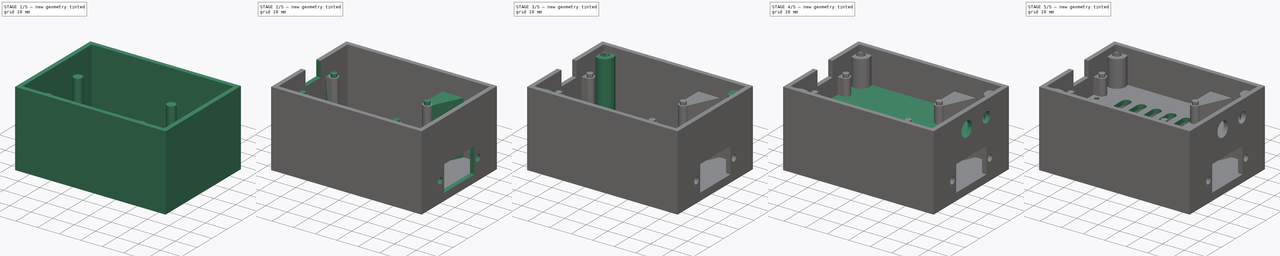
[diagram: build sequence overview — one tinted view per stage of 5, left to right]
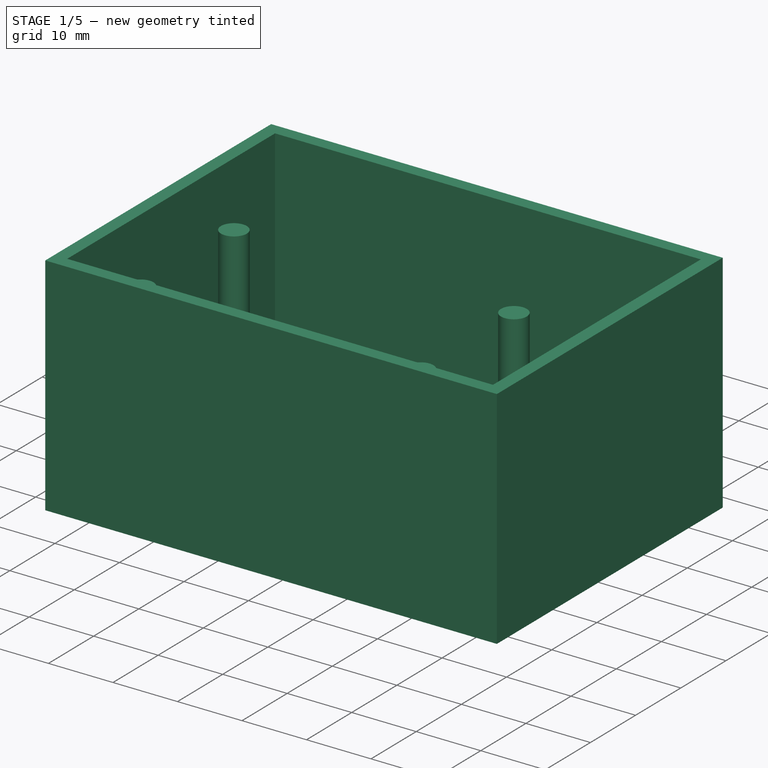
[diagram: stage 1 of 5 — iso view after this stage's code; geometry added in this stage tinted green]
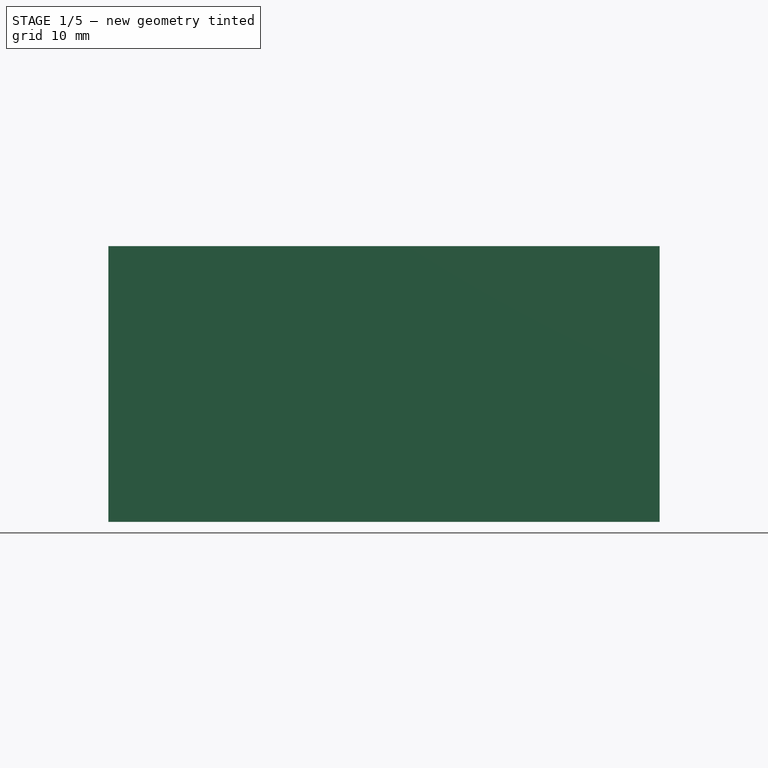
[diagram: stage 1 of 5 — front view after this stage's code; geometry added in this stage tinted green]
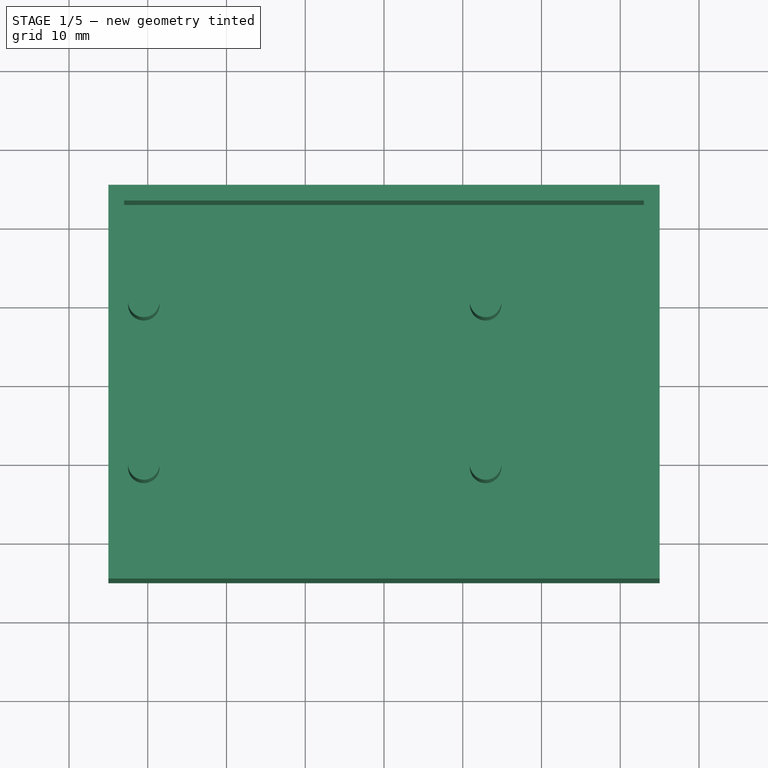
[diagram: stage 1 of 5 — top view after this stage's code; geometry added in this stage tinted green]
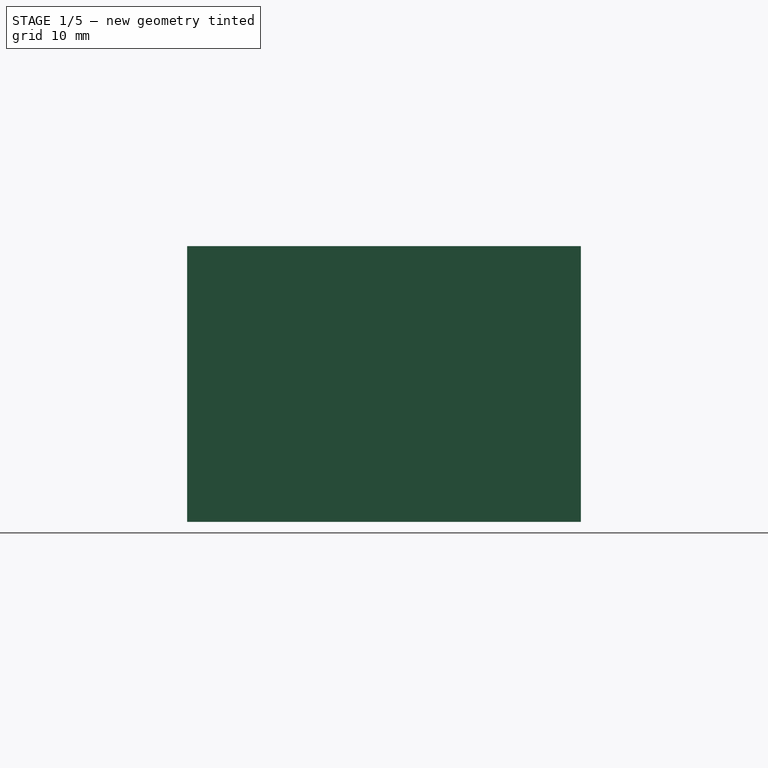
[diagram: stage 1 of 5 — right view after this stage's code; geometry added in this stage tinted green]
FCSTD DOCUMENT  (FreeCAD 0.18R)
Label: ESP_Sensor
License: All rights reserved
LicenseURL: http://en.wikipedia.org/wiki/All_rights_reserved
objects: Sketcher::SketchObject×17, PartDesign::Pocket×9, PartDesign::Pad×8, PartDesign::Body×2, Spreadsheet::Sheet×1
note: 53 computed .brp shape members not serialized (recipe doc carries the construction recipe); baked Part::Feature solids carry a one-line shape summary decoded from their .brp

FEATURE [Sketcher::SketchObject] Sketch
  MapMode = 5
  Support = -> [XY_Plane]
  expr: Constraints[9] = Parameter.gehaeuse_breite
  expr: Constraints[8] = Parameter.gehaeuse_laenge
  sketch-geometry (4):
    g0: LineSegment StartX=-35 StartY=25 StartZ=0 EndX=35 EndY=25 EndZ=0
    g1: LineSegment StartX=35 StartY=25 StartZ=0 EndX=35 EndY=-25 EndZ=0
    g2: LineSegment StartX=35 StartY=-25 StartZ=0 EndX=-35 EndY=-25 EndZ=0
    g3: LineSegment StartX=-35 StartY=-25 StartZ=0 EndX=-35 EndY=25 EndZ=0
  constraints (10):
    c: Coincident(g0,g1)
    c: Coincident(g1,g2)
    c: Coincident(g2,g3)
    c: Coincident(g3,g0)
    c: Horizontal(g2)
    c: Vertical(g1)
    c: Symmetric(g0,g0,g-2)
    c: Symmetric(g0,g2,g-1)
    c: DistanceX(g0,g0) = 70
    c: DistanceY(g2,g0) = 50
FEATURE [PartDesign::Pad] Pad  label="Boden"
  Length = 35
  Length2 = 100
  Midplane = true
  Profile = -> Sketch
  Type = 0
  expr: Length = Parameter.gehaeuse_hoehe
FEATURE [Spreadsheet::Sheet] Spreadsheet  label="Parameter"
  cells = A1=Länge; B1(gehaeuse_laenge)=70; C1=60; A2=Breite; B2(gehaeuse_breite)=50; C2=36; A3=Höhe; B3(gehaeuse_hoehe)=35; A4=Wandstärke; B4(gehaeuse_wand)=2
FEATURE [Sketcher::SketchObject] Sketch001
  MapMode = 5
  Placement = pos=(0,0,17.5) rot=(0,0,1;0rad)
  Support = -> [Pad]
  expr: Constraints[9] = Parameter.gehaeuse_breite - 4
  expr: Constraints[8] = Parameter.gehaeuse_laenge - 4
  sketch-geometry (4):
    g0: LineSegment StartX=-33 StartY=23 StartZ=0 EndX=33 EndY=23 EndZ=0
    g1: LineSegment StartX=33 StartY=23 StartZ=0 EndX=33 EndY=-23 EndZ=0
    g2: LineSegment StartX=33 StartY=-23 StartZ=0 EndX=-33 EndY=-23 EndZ=0
    g3: LineSegment StartX=-33 StartY=-23 StartZ=0 EndX=-33 EndY=23 EndZ=0
  constraints (10):
    c: Coincident(g0,g1)
    c: Coincident(g1,g2)
    c: Coincident(g2,g3)
    c: Coincident(g3,g0)
    c: Horizontal(g2)
    c: Vertical(g1)
    c: Symmetric(g0,g0,g-2)
    c: Symmetric(g0,g2,g-1)
    c: DistanceX(g0,g0) = 66
    c: DistanceY(g2,g0) = 46
FEATURE [Sketcher::SketchObject] Sketch002
  MapMode = 5
  Placement = pos=(0,0,-15.5) rot=(0,0,1;0rad)
  expr: Constraints[11] = Parameter.gehaeuse_laenge / 2 - 4.5
  expr: Constraints[10] = Parameter.gehaeuse_laenge / 2 - 4.5
  sketch-geometry (4):
    g0: Circle CenterX=-30.5 CenterY=10.325 CenterZ=0 NormalX=0 NormalY=0 NormalZ=1 AngleXU=0 Radius=2
    g1: Circle CenterX=12.9 CenterY=10.325 CenterZ=0 NormalX=0 NormalY=0 NormalZ=1 AngleXU=0 Radius=2
    g2: Circle CenterX=-30.5 CenterY=-10.325 CenterZ=0 NormalX=0 NormalY=0 NormalZ=1 AngleXU=0 Radius=2
    g3: Circle CenterX=12.9 CenterY=-10.325 CenterZ=0 NormalX=0 NormalY=0 NormalZ=1 AngleXU=0 Radius=2
  constraints (12):
    c: DistanceX(g0,g1) = 43.4
    c: Radius(g0) = 2
    c: Equal(g0,g1)
    c: DistanceY(g-1,g0) = 10.325
    c: DistanceY(g-1,g1) = 10.325
    c: DistanceX(g2,g3) = 43.4
    c: DistanceY(g2,g-1) = 10.325
    c: DistanceY(g3,g-1) = 10.325
    c: Equal(g0,g2)
    c: Equal(g0,g3)
    c: DistanceX(g0,g-1) = 30.5
    c: DistanceX(g2,g-1) = 30.5
FEATURE [PartDesign::Pocket] Pocket
  BaseFeature = -> Pad
  Length = 33
  Length2 = 100
  Profile = -> Sketch001
  Type = 0
  expr: Length = Parameter.gehaeuse_hoehe - 2
FEATURE [PartDesign::Pad] Pad001  label="Abstandhalter ESP vom Boden"
  BaseFeature = -> Pocket
  Length = 25
  Length2 = 100
  Profile = -> Sketch002
  Type = 0
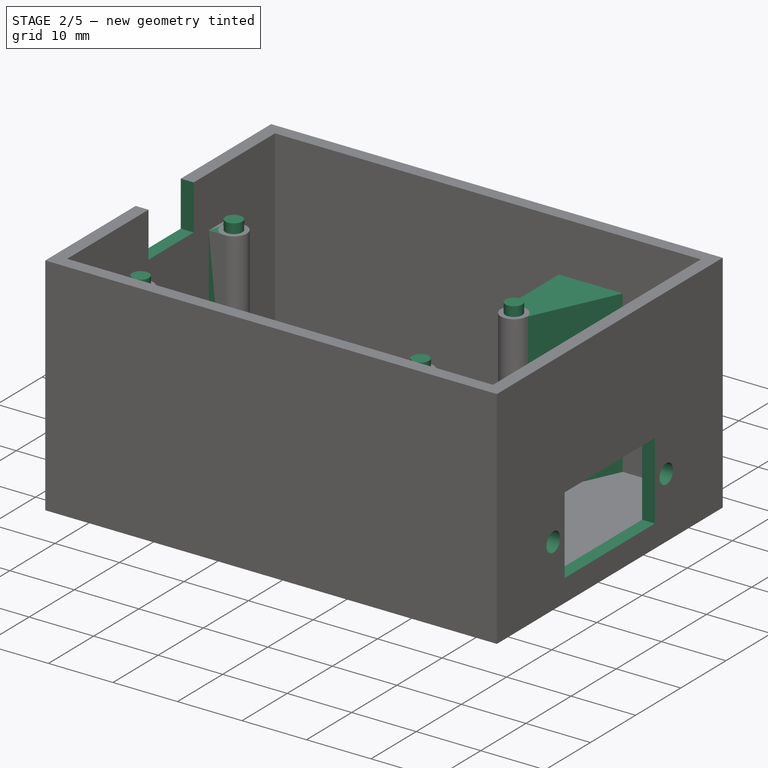
[diagram: stage 2 of 5 — iso view after this stage's code; geometry added in this stage tinted green]
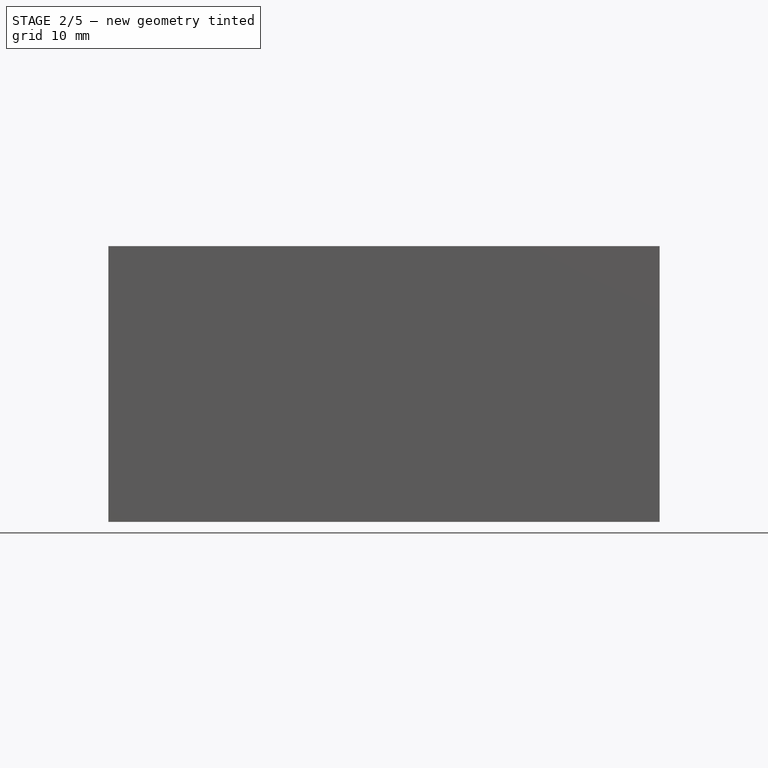
[diagram: stage 2 of 5 — front view after this stage's code; geometry added in this stage tinted green]
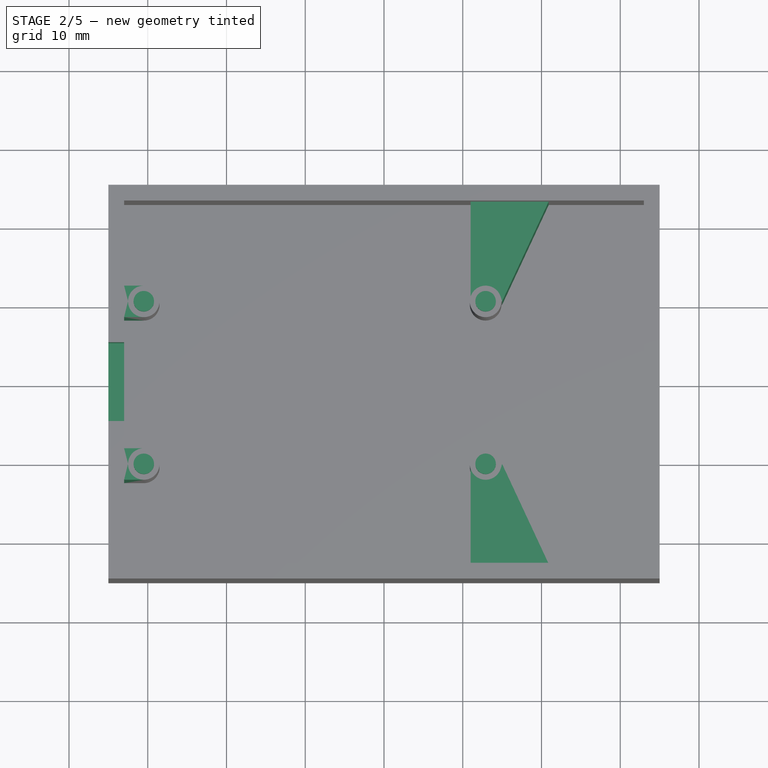
[diagram: stage 2 of 5 — top view after this stage's code; geometry added in this stage tinted green]
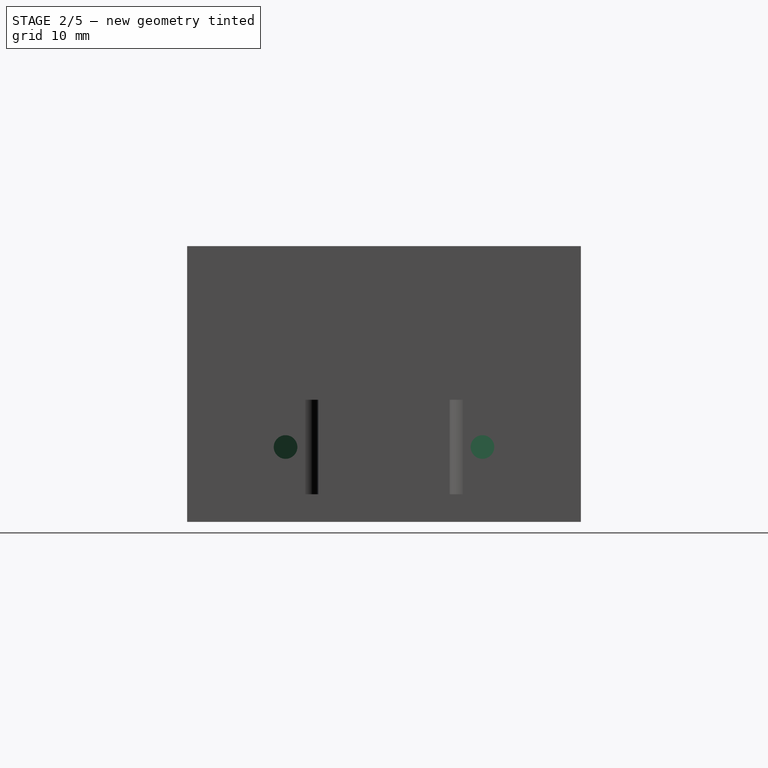
[diagram: stage 2 of 5 — right view after this stage's code; geometry added in this stage tinted green]
FEATURE [Sketcher::SketchObject] Sketch003
  MapMode = 5
  Placement = pos=(0,0,9.5) rot=(0,0,1;0rad)
  Support = -> [Pad001]
  expr: Constraints[5] = Parameter.gehaeuse_laenge / 2 - 4.5
  expr: Constraints[4] = Parameter.gehaeuse_laenge / 2 - 4.5
  sketch-geometry (6):
    g0: LineSegment [constr] StartX=-30.5 StartY=10.325 StartZ=0 EndX=12.9 EndY=10.325 EndZ=0
    g1: LineSegment [constr] StartX=-30.5 StartY=-10.325 StartZ=0 EndX=12.9 EndY=-10.325 EndZ=0
    g2: Circle CenterX=-30.5 CenterY=10.325 CenterZ=0 NormalX=0 NormalY=0 NormalZ=1 AngleXU=0 Radius=1.3
    g3: Circle CenterX=12.9 CenterY=10.325 CenterZ=0 NormalX=0 NormalY=0 NormalZ=1 AngleXU=0 Radius=1.3
    g4: Circle CenterX=-30.5 CenterY=-10.325 CenterZ=0 NormalX=0 NormalY=0 NormalZ=1 AngleXU=0 Radius=1.3
    g5: Circle CenterX=12.9 CenterY=-10.325 CenterZ=0 NormalX=0 NormalY=0 NormalZ=1 AngleXU=0 Radius=1.3
  constraints (16):
    c: Horizontal(g0)
    c: Horizontal(g1)
    c: DistanceX(g1,g1) = 43.4
    c: Equal(g1,g0)
    c: DistanceX(g0,g-1) = 30.5
    c: DistanceX(g1,g-1) = 30.5
    c: DistanceY(g-1,g0) = 10.325
    c: DistanceY(g1,g-1) = 10.325
    c: Coincident(g2,g0)
    c: Coincident(g3,g0)
    c: Coincident(g4,g1)
    c: Coincident(g5,g1)
    c: Equal(g2,g3)
    c: Equal(g2,g4)
    c: Equal(g2,g5)
    c: Radius(g2) = 1.3
FEATURE [PartDesign::Pad] Pad002  label="ESP Befestigung"
  BaseFeature = -> Pad001
  Length = 1.5
  Length2 = 100
  Profile = -> Sketch003
  Type = 0
FEATURE [Sketcher::SketchObject] Sketch004
  MapMode = 5
  Placement = pos=(-35,0,0) rot=(0.57735,-0.57735,-0.57735;2.0944rad)
  Support = -> [Pad002]
  sketch-geometry (4):
    g0: LineSegment StartX=-5 StartY=17.5 StartZ=0 EndX=5 EndY=17.5 EndZ=0
    g1: LineSegment StartX=5 StartY=17.5 StartZ=0 EndX=5 EndY=10.5 EndZ=0
    g2: LineSegment StartX=5 StartY=10.5 StartZ=0 EndX=-5 EndY=10.5 EndZ=0
    g3: LineSegment StartX=-5 StartY=10.5 StartZ=0 EndX=-5 EndY=17.5 EndZ=0
  constraints (11):
    c: Coincident(g0,g1)
    c: Coincident(g1,g2)
    c: Coincident(g2,g3)
    c: Coincident(g3,g0)
    c: Horizontal(g2)
    c: Vertical(g1)
    c: Vertical(g3)
    c: DistanceY(g-1,g2) = 10.5
    c: DistanceY(g1,g0) = 7
    c: DistanceX(g0,g0) = 10
    c: Symmetric(g0,g0,g-2)
FEATURE [PartDesign::Pocket] Pocket001  label="USB Anschluss"
  BaseFeature = -> Pad002
  Length = 2
  Length2 = 100
  Profile = -> Sketch004
  Type = 0
FEATURE [PartDesign::Body] Body001  label="Deckel"
  Group = -> [Sketch007,Pad003,Sketch008,Pad004,Sketch009,Sketch011,Pocket004,Sketch012,Pocket006,Sketch014,Pad005,Pocket008]
  Origin = -> Origin001
  Placement = pos=(0,0,38.7) rot=(0,0,1;0rad)
  Tip = -> Pocket006
FEATURE [Sketcher::SketchObject] Sketch015  label="Sketch016"
  MapMode = 5
  Placement = pos=(0,0,-15.5) rot=(0,0,1;0rad)
  sketch-geometry (16):
    g0: LineSegment StartX=11 StartY=10.325 StartZ=0 EndX=11 EndY=23.325 EndZ=0
    g1: LineSegment StartX=11 StartY=23.325 StartZ=0 EndX=21.062 EndY=23.325 EndZ=0
    g2: LineSegment StartX=21.062 StartY=23.325 StartZ=0 EndX=15 EndY=10.325 EndZ=0
    g3: LineSegment StartX=15 StartY=10.325 StartZ=0 EndX=11 EndY=10.325 EndZ=0
    g4: LineSegment StartX=11 StartY=-10.325 StartZ=0 EndX=15 EndY=-10.325 EndZ=0
    g5: LineSegment StartX=15 StartY=-10.325 StartZ=0 EndX=21.062 EndY=-23.325 EndZ=0
    g6: LineSegment StartX=21.062 StartY=-23.325 StartZ=0 EndX=11 EndY=-23.325 EndZ=0
    g7: LineSegment StartX=11 StartY=-23.325 StartZ=0 EndX=11 EndY=-10.325 EndZ=0
    g8: LineSegment StartX=-30.5 StartY=12.325 StartZ=0 EndX=-33 EndY=12.325 EndZ=0
    g9: LineSegment StartX=-33 StartY=12.325 StartZ=0 EndX=-33 EndY=8.325 EndZ=0
    g10: LineSegment StartX=-33 StartY=8.325 StartZ=0 EndX=-30.5 EndY=8.325 EndZ=0
    g11: LineSegment StartX=-30.5 StartY=8.325 StartZ=0 EndX=-30.5 EndY=12.325 EndZ=0
    g12: LineSegment StartX=-33 StartY=-8.325 StartZ=0 EndX=-30.5 EndY=-8.325 EndZ=0
    g13: LineSegment StartX=-30.5 StartY=-8.325 StartZ=0 EndX=-30.5 EndY=-12.325 EndZ=0
    g14: LineSegment StartX=-30.5 StartY=-12.325 StartZ=0 EndX=-33 EndY=-12.325 EndZ=0
    g15: LineSegment StartX=-33 StartY=-12.325 StartZ=0 EndX=-33 EndY=-8.325 EndZ=0
  constraints (48):
    c: Coincident(g0,g1)
    c: Horizontal(g1)
    c: Coincident(g1,g2)
    c: Coincident(g2,g3)
    c: Coincident(g3,g0)
    c: DistanceY(g-1,g0) = 10.325
    c: DistanceX(g0,g2) = 4
    c: DistanceX(g-1,g0) = 11
    c: DistanceY(g2,g1) = 13
    c: Horizontal(g4)
    c: Coincident(g4,g5)
    c: Coincident(g5,g6)
    c: Horizontal(g6)
    c: Coincident(g6,g7)
    c: Coincident(g7,g4)
    c: Angle(g5,g6) = 1.13446
    c: DistanceX(g4,g4) = 4
    c: DistanceY(g5,g4) = 13
    c: DistanceY(g4,g-1) = 10.325
    c: DistanceX(g-1,g4) = 11
    c: Angle(g0,g1) = 1.5708
    c: Angle(g1,g2) = 1.13446
    c: Angle(g3,g0) = 1.5708
    c: Angle(g6,g7) = 1.5708
    c: Horizontal(g8)
    c: Coincident(g8,g9)
    c: Vertical(g9)
    c: Coincident(g9,g10)
    c: Coincident(g10,g11)
    c: Coincident(g11,g8)
    c: Vertical(g11)
    c: Horizontal(g10)
    c: DistanceY(g10,g8) = 4
    c: DistanceY(g-1,g10) = 8.325
    c: DistanceX(g10,g-1) = 30.5
    c: DistanceX(g8,g8) = 2.5
    c: Coincident(g12,g13)
    c: Coincident(g13,g14)
    c: Coincident(g14,g15)
    c: Coincident(g15,g12)
    c: Horizontal(g12)
    c: Horizontal(g14)
    c: Vertical(g13)
    c: Vertical(g15)
    c: DistanceX(g14,g13) = 2.5
    c: DistanceY(g12,g-1) = 8.325
    c: DistanceY(g13,g12) = 4
    c: DistanceX(g12,g-1) = 30.5
FEATURE [Sketcher::SketchObject] Sketch016  label="Sketch017"
  MapMode = 5
  Placement = pos=(0,0,-15.5) rot=(0,0,1;0rad)
  expr: Constraints[11] = Parameter.gehaeuse_laenge / 2 - 4
  expr: Constraints[6] = Parameter.gehaeuse_laenge / 2 - 4
  expr: Constraints[10] = Parameter.gehaeuse_laenge / 2 - 4
  expr: Constraints[2] = Parameter.gehaeuse_laenge / 2 - 4
  expr: Constraints[9] = Parameter.gehaeuse_breite / 2 - 4
  expr: Constraints[8] = Parameter.gehaeuse_breite / 2 - 4
  expr: Constraints[1] = Parameter.gehaeuse_breite / 2 - 4
  expr: Constraints[7] = Parameter.gehaeuse_breite / 2 - 4
  sketch-geometry (4):
    g0: Circle CenterX=-31 CenterY=21 CenterZ=0 NormalX=0 NormalY=0 NormalZ=1 AngleXU=0 Radius=4
    g1: Circle CenterX=31 CenterY=21 CenterZ=0 NormalX=0 NormalY=0 NormalZ=1 AngleXU=0 Radius=4
    g2: Circle CenterX=-31 CenterY=-21 CenterZ=0 NormalX=0 NormalY=0 NormalZ=1 AngleXU=0 Radius=4
    g3: Circle CenterX=31 CenterY=-21 CenterZ=0 NormalX=0 NormalY=0 NormalZ=1 AngleXU=0 Radius=4
  constraints (12):
    c: Radius(g0) = 4
    c: DistanceY(g-1,g0) = 21
    c: DistanceX(g0,g-1) = 31
    c: Equal(g0,g1)
    c: Equal(g0,g2)
    c: Equal(g0,g3)
    c: DistanceX(g2,g-1) = 31
    c: DistanceY(g2,g-1) = 21
    c: DistanceY(g3,g-1) = 21
    c: DistanceY(g-1,g1) = 21
    c: DistanceX(g-1,g3) = 31
    c: DistanceX(g-1,g1) = 31
FEATURE [Sketcher::SketchObject] Sketch018  label="Sketch019"
  MapMode = 5
  Placement = pos=(0,0,-17.5) rot=(1,0,0;3.14159rad)
  expr: Constraints[82] = Parameter.gehaeuse_laenge / 2 - 4
  expr: Constraints[81] = Parameter.gehaeuse_laenge / 2 - 4
  expr: Constraints[80] = Parameter.gehaeuse_laenge / 2 - 4
  expr: Constraints[79] = Parameter.gehaeuse_breite / 2 - 4
  expr: Constraints[83] = Parameter.gehaeuse_laenge / 2 - 4
  expr: Constraints[78] = Parameter.gehaeuse_breite / 2 - 4
  expr: Constraints[77] = Parameter.gehaeuse_breite / 2 - 4
  expr: Constraints[76] = Parameter.gehaeuse_breite / 2 - 4
  sketch-geometry (28):
    g0: LineSegment StartX=-29.3834 StartY=18.2 StartZ=0 EndX=-27.7668 EndY=21 EndZ=0
    g1: LineSegment StartX=-27.7668 StartY=21 StartZ=0 EndX=-29.3834 EndY=23.8 EndZ=0
    g2: LineSegment StartX=-29.3834 StartY=23.8 StartZ=0 EndX=-32.6166 EndY=23.8 EndZ=0
    g3: LineSegment StartX=-32.6166 StartY=23.8 StartZ=0 EndX=-34.2332 EndY=21 EndZ=0
    g4: LineSegment StartX=-34.2332 StartY=21 StartZ=0 EndX=-32.6166 EndY=18.2 EndZ=0
    g5: LineSegment StartX=-32.6166 StartY=18.2 StartZ=0 EndX=-29.3834 EndY=18.2 EndZ=0
    g6: Circle [constr] CenterX=-31 CenterY=21 CenterZ=0 NormalX=0 NormalY=0 NormalZ=1 AngleXU=0 Radius=3.23316
    g7: LineSegment StartX=32.6166 StartY=18.2 StartZ=0 EndX=34.2332 EndY=21 EndZ=0
    g8: LineSegment StartX=34.2332 StartY=21 StartZ=0 EndX=32.6166 EndY=23.8 EndZ=0
    g9: LineSegment StartX=32.6166 StartY=23.8 StartZ=0 EndX=29.3834 EndY=23.8 EndZ=0
    g10: LineSegment StartX=29.3834 StartY=23.8 StartZ=0 EndX=27.7668 EndY=21 EndZ=0
    g11: LineSegment StartX=27.7668 StartY=21 StartZ=0 EndX=29.3834 EndY=18.2 EndZ=0
    g12: LineSegment StartX=29.3834 StartY=18.2 StartZ=0 EndX=32.6166 EndY=18.2 EndZ=0
    g13: Circle [constr] CenterX=31 CenterY=21 CenterZ=0 NormalX=0 NormalY=0 NormalZ=1 AngleXU=0 Radius=3.23316
    g14: LineSegment StartX=-29.3834 StartY=-23.8 StartZ=0 EndX=-27.7668 EndY=-21 EndZ=0
    g15: LineSegment StartX=-27.7668 StartY=-21 StartZ=0 EndX=-29.3834 EndY=-18.2 EndZ=0
    g16: LineSegment StartX=-29.3834 StartY=-18.2 StartZ=0 EndX=-32.6166 EndY=-18.2 EndZ=0
    g17: LineSegment StartX=-32.6166 StartY=-18.2 StartZ=0 EndX=-34.2332 EndY=-21 EndZ=0
    g18: LineSegment StartX=-34.2332 StartY=-21 StartZ=0 EndX=-32.6166 EndY=-23.8 EndZ=0
    g19: LineSegment StartX=-32.6166 StartY=-23.8 StartZ=0 EndX=-29.3834 EndY=-23.8 EndZ=0
    g20: Circle [constr] CenterX=-31 CenterY=-21 CenterZ=0 NormalX=0 NormalY=0 NormalZ=1 AngleXU=0 Radius=3.23316
    g21: LineSegment StartX=32.6166 StartY=-23.8 StartZ=0 EndX=34.2332 EndY=-21 EndZ=0
    g22: LineSegment StartX=34.2332 StartY=-21 StartZ=0 EndX=32.6166 EndY=-18.2 EndZ=0
    g23: LineSegment StartX=32.6166 StartY=-18.2 StartZ=0 EndX=29.3834 EndY=-18.2 EndZ=0
    g24: LineSegment StartX=29.3834 StartY=-18.2 StartZ=0 EndX=27.7668 EndY=-21 EndZ=0
    g25: LineSegment StartX=27.7668 StartY=-21 StartZ=0 EndX=29.3834 EndY=-23.8 EndZ=0
    g26: LineSegment StartX=29.3834 StartY=-23.8 StartZ=0 EndX=32.6166 EndY=-23.8 EndZ=0
    g27: Circle [constr] CenterX=31 CenterY=-21 CenterZ=0 NormalX=0 NormalY=0 NormalZ=1 AngleXU=0 Radius=3.23316
  constraints (68):
    c: Coincident(g0,g1)
    c: Coincident(g1,g2)
    c: Coincident(g2,g3)
    c: Coincident(g3,g4)
    c: Coincident(g4,g5)
    c: Coincident(g5,g0)
    c: Equal(g0, g1-g5) x5
    c: PointOnObject(g0,g6)
    c: PointOnObject(g1,g6)
    c: PointOnObject(g2,g6)
    c: PointOnObject(g3,g6)
    c: PointOnObject(g4,g6)
    c: PointOnObject(g5,g6)
    c: Coincident(g7,g8)
    c: Coincident(g8,g9)
    c: Coincident(g9,g10)
    c: Coincident(g10,g11)
    c: Coincident(g11,g12)
    c: Coincident(g12,g7)
    c: Equal(g7, g8-g12) x5
    c: PointOnObject(g7,g13)
    c: PointOnObject(g8,g13)
    c: PointOnObject(g9,g13)
    c: PointOnObject(g10,g13)
    c: PointOnObject(g11,g13)
    c: PointOnObject(g12,g13)
    c: Coincident(g14,g15)
    c: Coincident(g15,g16)
    c: Coincident(g16,g17)
    c: Coincident(g17,g18)
    c: Coincident(g18,g19)
    c: Coincident(g19,g14)
    c: Equal(g14, g15-g19) x5
    c: PointOnObject(g14,g20)
    c: PointOnObject(g15,g20)
    c: PointOnObject(g16,g20)
    c: PointOnObject(g17,g20)
    c: PointOnObject(g18,g20)
    c: PointOnObject(g19,g20)
    c: Coincident(g21,g22)
    c: Coincident(g22,g23)
    c: Coincident(g23,g24)
    c: Coincident(g24,g25)
    c: Coincident(g25,g26)
    c: Coincident(g26,g21)
    c: Equal(g21, g22-g26) x5
    c: PointOnObject(g21,g27)
    c: PointOnObject(g22,g27)
    c: PointOnObject(g23,g27)
    c: PointOnObject(g24,g27)
    c: PointOnObject(g25,g27)
    c: PointOnObject(g26,g27)
    c: Horizontal(g2)
    c: Horizontal(g9)
    c: Horizontal(g23)
    c: Horizontal(g16)
    c: DistanceY(g14,g15) = 5.6
    c: DistanceY(g0,g1) = 5.6
    c: DistanceY(g7,g8) = 5.6
    c: DistanceY(g21,g22) = 5.6
    c: DistanceY(g-1,g6) = 21
    c: DistanceY(g20,g-1) = 21
    c: DistanceY(g27,g-1) = 21
    c: DistanceY(g-1,g13) = 21
    c: DistanceX(g6,g-1) = 31
    c: DistanceX(g-1,g13) = 31
    c: DistanceX(g-1,g27) = 31
    c: DistanceX(g20,g-1) = 31
FEATURE [PartDesign::Pocket] Pocket009  label="SubD 9 Polig"
  BaseFeature = -> Pocket001
  Length = 2
  Length2 = 100
  Profile = -> Sketch005
  Type = 0
FEATURE [PartDesign::Pad] Pad006  label="ESP Verstärkung"
  BaseFeature = -> Pocket009
  Length = 25
  Length2 = 100
  Profile = -> Sketch015
  Type = 0
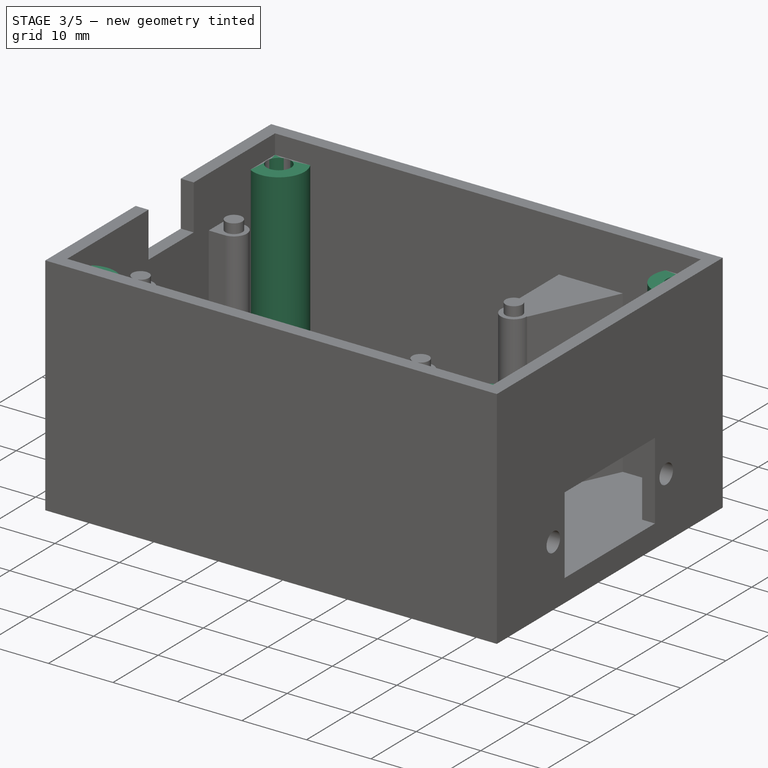
[diagram: stage 3 of 5 — iso view after this stage's code; geometry added in this stage tinted green]
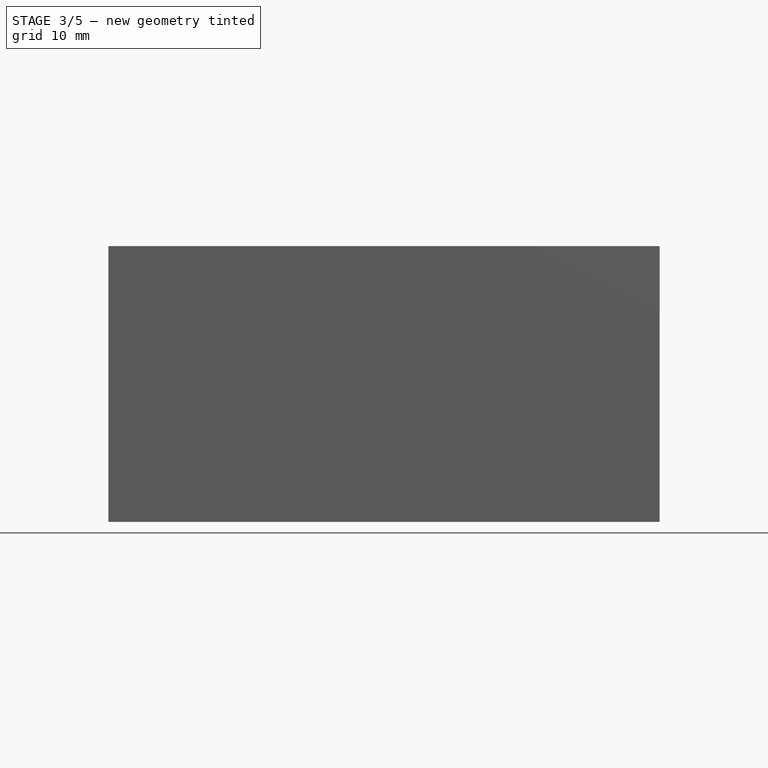
[diagram: stage 3 of 5 — front view after this stage's code; geometry added in this stage tinted green]
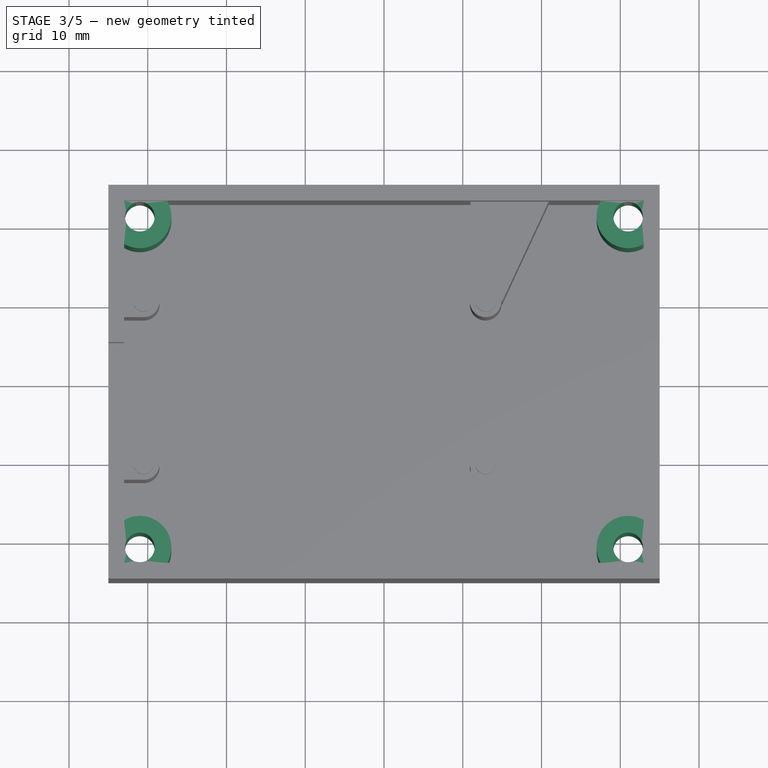
[diagram: stage 3 of 5 — top view after this stage's code; geometry added in this stage tinted green]
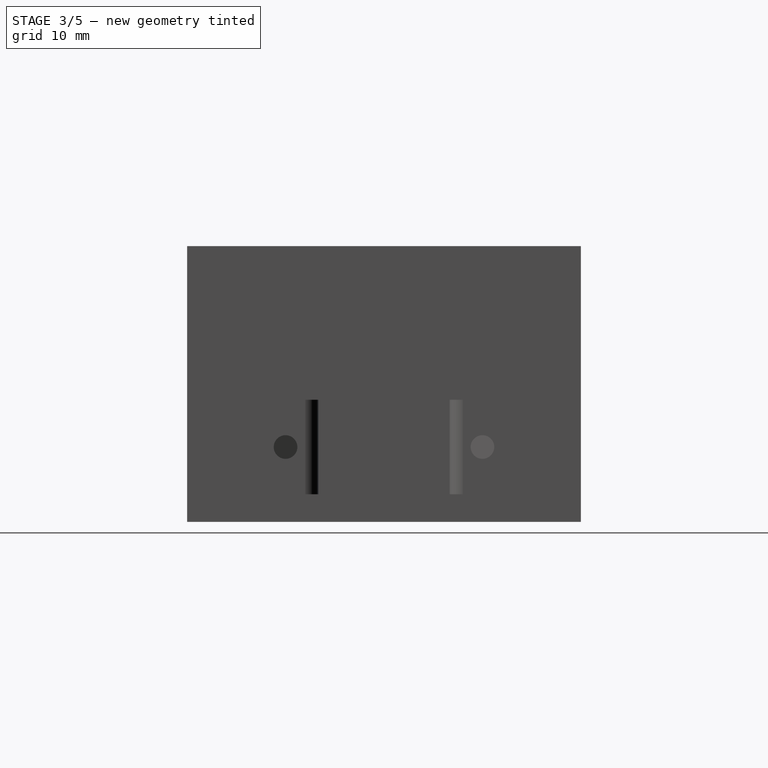
[diagram: stage 3 of 5 — right view after this stage's code; geometry added in this stage tinted green]
FEATURE [PartDesign::Pad] Pad007  label="Deckelbefestigung"
  BaseFeature = -> Pad006
  Length = 30
  Length2 = 100
  Profile = -> Sketch016
  Type = 0
  expr: Length = Parameter.gehaeuse_hoehe - Parameter.gehaeuse_wand - 3
FEATURE [Sketcher::SketchObject] Sketch017  label="Sketch018"
  MapMode = 5
  Placement = pos=(0,0,14.5) rot=(0,0,1;0rad)
  Support = -> [Pad007]
  expr: Constraints[7] = Parameter.gehaeuse_laenge / 2 - 4
  expr: Constraints[6] = Parameter.gehaeuse_laenge / 2 - 4
  expr: Constraints[4] = Parameter.gehaeuse_laenge / 2 - 4
  expr: Constraints[3] = Parameter.gehaeuse_breite / 2 - 4
  expr: Constraints[5] = Parameter.gehaeuse_laenge / 2 - 4
  expr: Constraints[2] = Parameter.gehaeuse_breite / 2 - 4
  expr: Constraints[1] = Parameter.gehaeuse_breite / 2 - 4
  expr: Constraints[0] = Parameter.gehaeuse_breite / 2 - 4
  sketch-geometry (4):
    g0: Circle CenterX=-31 CenterY=21 CenterZ=0 NormalX=0 NormalY=0 NormalZ=1 AngleXU=0 Radius=1.88
    g1: Circle CenterX=31 CenterY=21 CenterZ=0 NormalX=0 NormalY=0 NormalZ=1 AngleXU=0 Radius=1.88
    g2: Circle CenterX=31 CenterY=-21 CenterZ=0 NormalX=0 NormalY=0 NormalZ=1 AngleXU=0 Radius=1.88
    g3: Circle CenterX=-31 CenterY=-21 CenterZ=0 NormalX=0 NormalY=0 NormalZ=1 AngleXU=0 Radius=1.88
  constraints (12):
    c: DistanceY(g-1,g0) = 21
    c: DistanceY(g3,g-1) = 21
    c: DistanceY(g-1,g1) = 21
    c: DistanceY(g2,g-1) = 21
    c: DistanceX(g0,g-1) = 31
    c: DistanceX(g3,g-1) = 31
    c: DistanceX(g-1,g1) = 31
    c: DistanceX(g-1,g2) = 31
    c: Equal(g0,g1)
    c: Equal(g0,g3)
    c: Equal(g0,g2)
    c: Radius(g0) = 1.88
FEATURE [PartDesign::Pocket] Pocket010  label="Bohrung M3"
  BaseFeature = -> Pad007
  Length = 5
  Length2 = 100
  Profile = -> Sketch017
  Type = 1
FEATURE [PartDesign::Pocket] Pocket011  label="Deckelverschraubung M3 Mutter"
  BaseFeature = -> Pocket010
  Length = 5
  Length2 = 100
  Profile = -> Sketch018
  Type = 0
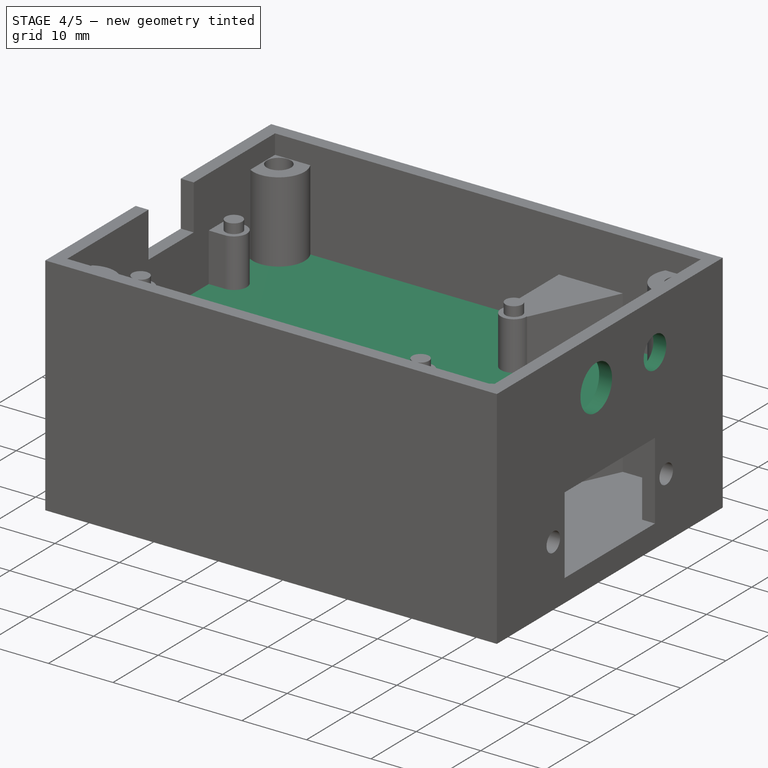
[diagram: stage 4 of 5 — iso view after this stage's code; geometry added in this stage tinted green]
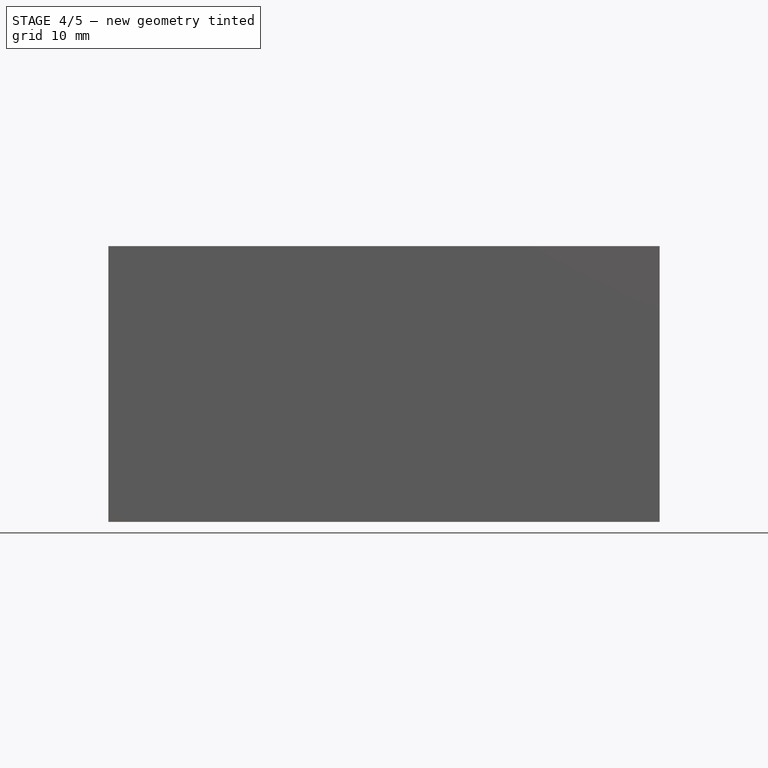
[diagram: stage 4 of 5 — front view after this stage's code; geometry added in this stage tinted green]
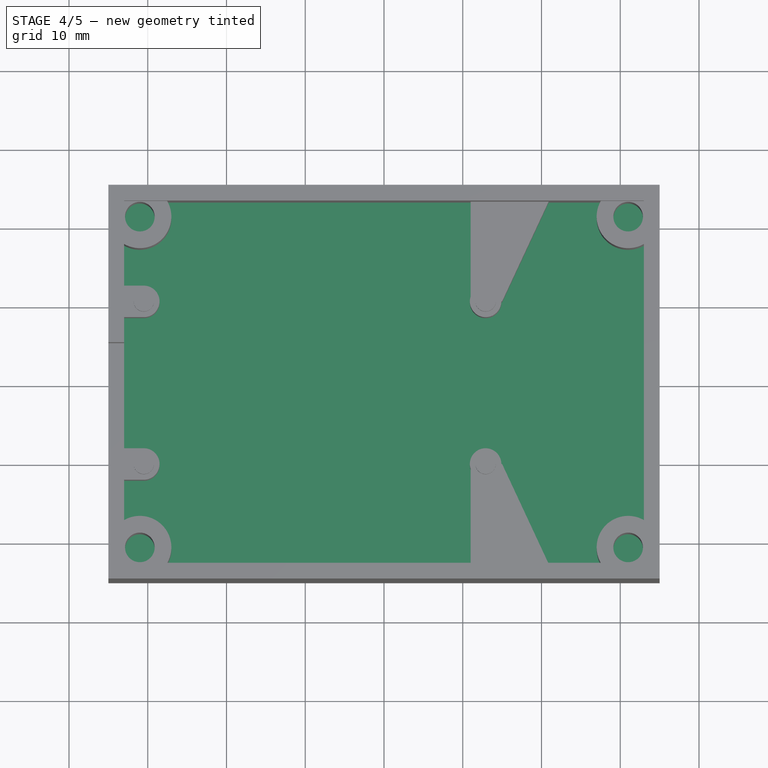
[diagram: stage 4 of 5 — top view after this stage's code; geometry added in this stage tinted green]
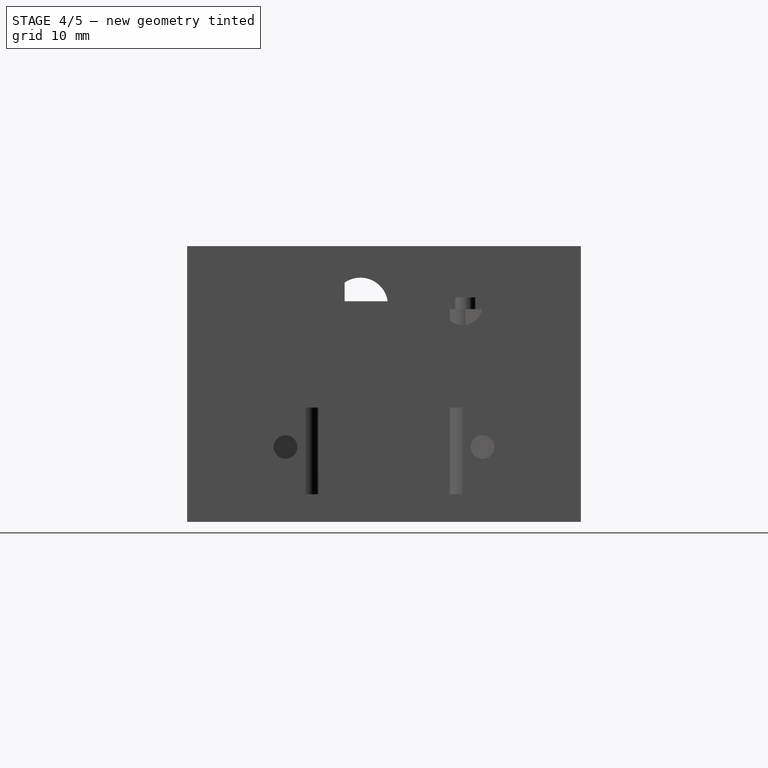
[diagram: stage 4 of 5 — right view after this stage's code; geometry added in this stage tinted green]
FEATURE [Sketcher::SketchObject] Sketch005
  MapMode = 5
  Placement = pos=(35,0,0) rot=(0.57735,0.57735,0.57735;2.0944rad)
  Support = -> [Pocket001]
  sketch-geometry (7):
    g0: LineSegment StartX=-10 StartY=-2 StartZ=0 EndX=10 EndY=-2 EndZ=0
    g1: LineSegment StartX=10 StartY=-2 StartZ=0 EndX=10 EndY=-14 EndZ=0
    g2: LineSegment StartX=10 StartY=-14 StartZ=0 EndX=-10 EndY=-14 EndZ=0
    g3: LineSegment StartX=-10 StartY=-14 StartZ=0 EndX=-10 EndY=-2 EndZ=0
    g4: LineSegment [constr] StartX=-12.5 StartY=-8 StartZ=0 EndX=12.5 EndY=-8 EndZ=0
    g5: Circle CenterX=-12.5 CenterY=-8 CenterZ=0 NormalX=0 NormalY=0 NormalZ=1 AngleXU=0 Radius=1.5
    g6: Circle CenterX=12.5 CenterY=-8 CenterZ=0 NormalX=0 NormalY=0 NormalZ=1 AngleXU=0 Radius=1.5
  constraints (16):
    c: Coincident(g0,g1)
    c: Coincident(g1,g2)
    c: Coincident(g2,g3)
    c: Coincident(g3,g0)
    c: DistanceX(g4,g4) = 25
    c: Symmetric(g4,g4,g-2)
    c: DistanceY(g4,g-1) = 8
    c: Coincident(g5,g4)
    c: Coincident(g6,g4)
    c: Radius(g5) = 1.5
    c: Equal(g5,g6)
    c: DistanceX(g0,g0) = 20
    c: Symmetric(g0,g0,g-2)
    c: Symmetric(g2,g1,g-2)
    c: DistanceY(g2,g0) = 12
    c: Symmetric(g0,g1,g4)
FEATURE [Sketcher::SketchObject] Sketch006
  MapMode = 5
  Placement = pos=(35,0,0) rot=(0.57735,0.57735,0.57735;2.0944rad)
  sketch-geometry (2):
    g0: Circle CenterX=10 CenterY=10 CenterZ=0 NormalX=0 NormalY=0 NormalZ=1 AngleXU=0 Radius=2.5
    g1: Circle CenterX=-3 CenterY=10 CenterZ=0 NormalX=0 NormalY=0 NormalZ=1 AngleXU=0 Radius=3.5
  constraints (6):
    c: DistanceY(g-1,g0) = 10
    c: Radius(g0) = 2.5
    c: DistanceX(g-1,g0) = 10
    c: DistanceY(g-1,g1) = 10
    c: DistanceX(g1,g-1) = 3
    c: Radius(g1) = 3.5
FEATURE [Sketcher::SketchObject] Sketch007
  MapMode = 5
  Support = -> [XY_Plane001]
  expr: Constraints[9] = Parameter.gehaeuse_breite
  expr: Constraints[8] = Parameter.gehaeuse_laenge
  sketch-geometry (4):
    g0: LineSegment StartX=-35 StartY=25 StartZ=0 EndX=35 EndY=25 EndZ=0
    g1: LineSegment StartX=35 StartY=25 StartZ=0 EndX=35 EndY=-25 EndZ=0
    g2: LineSegment StartX=35 StartY=-25 StartZ=0 EndX=-35 EndY=-25 EndZ=0
    g3: LineSegment StartX=-35 StartY=-25 StartZ=0 EndX=-35 EndY=25 EndZ=0
  constraints (10):
    c: Coincident(g0,g1)
    c: Coincident(g1,g2)
    c: Coincident(g2,g3)
    c: Coincident(g3,g0)
    c: Horizontal(g2)
    c: Vertical(g1)
    c: Symmetric(g0,g0,g-2)
    c: Symmetric(g0,g2,g-1)
    c: DistanceX(g0,g0) = 70
    c: DistanceY(g2,g0) = 50
FEATURE [PartDesign::Pad] Pad003  label="Deckel001"
  Length = 2
  Length2 = 100
  Profile = -> Sketch007
  Type = 0
FEATURE [Sketcher::SketchObject] Sketch008
  MapMode = 5
  Placement = pos=(0,0,0) rot=(1,0,0;3.14159rad)
  Support = -> [Pad003]
  expr: Constraints[9] = Parameter.gehaeuse_breite - 4
  expr: Constraints[8] = Parameter.gehaeuse_laenge - 4
  sketch-geometry (4):
    g0: LineSegment StartX=-33 StartY=23 StartZ=0 EndX=33 EndY=23 EndZ=0
    g1: LineSegment StartX=33 StartY=23 StartZ=0 EndX=33 EndY=-23 EndZ=0
    g2: LineSegment StartX=33 StartY=-23 StartZ=0 EndX=-33 EndY=-23 EndZ=0
    g3: LineSegment StartX=-33 StartY=-23 StartZ=0 EndX=-33 EndY=23 EndZ=0
  constraints (10):
    c: Coincident(g0,g1)
    c: Coincident(g1,g2)
    c: Coincident(g2,g3)
    c: Coincident(g3,g0)
    c: Horizontal(g2)
    c: Vertical(g1)
    c: Symmetric(g0,g0,g-2)
    c: Symmetric(g0,g2,g-1)
    c: DistanceX(g0,g0) = 66
    c: DistanceY(g2,g0) = 46
FEATURE [PartDesign::Pad] Pad004  label="Deckel Klemm Befestigung"
  BaseFeature = -> Pad003
  Length = 3
  Length2 = 100
  Profile = -> Sketch008
  Type = 0
FEATURE [Sketcher::SketchObject] Sketch011
  MapMode = 5
  Placement = pos=(0,0,-3) rot=(1,0,0;3.14159rad)
  Support = -> [Pad004]
  expr: Constraints[9] = Parameter.gehaeuse_breite - 8
  expr: Constraints[8] = Parameter.gehaeuse_laenge - 8
  sketch-geometry (4):
    g0: LineSegment StartX=-31 StartY=21 StartZ=0 EndX=31 EndY=21 EndZ=0
    g1: LineSegment StartX=31 StartY=21 StartZ=0 EndX=31 EndY=-21 EndZ=0
    g2: LineSegment StartX=31 StartY=-21 StartZ=0 EndX=-31 EndY=-21 EndZ=0
    g3: LineSegment StartX=-31 StartY=-21 StartZ=0 EndX=-31 EndY=21 EndZ=0
  constraints (10):
    c: Coincident(g0,g1)
    c: Coincident(g1,g2)
    c: Coincident(g2,g3)
    c: Coincident(g3,g0)
    c: Horizontal(g2)
    c: Vertical(g1)
    c: Symmetric(g0,g0,g-2)
    c: Symmetric(g2,g0,g-1)
    c: DistanceX(g0,g0) = 62
    c: DistanceY(g2,g0) = 42
FEATURE [PartDesign::Pocket] Pocket004  label="Deckel Innen"
  BaseFeature = -> Pad004
  Length = 3
  Length2 = 100
  Profile = -> Sketch011
  Type = 0
FEATURE [PartDesign::Pocket] Pocket012  label="Setup Taster LED 5mm"
  BaseFeature = -> Pocket011
  Length = 2
  Length2 = 100
  Profile = -> Sketch006
  Type = 0
FEATURE [PartDesign::Body] Body  label="Unterteil"
  Group = -> [Sketch,Pad,Sketch001,Sketch002,Pocket,Pad001,Sketch003,Pad002,Sketch004,Pocket001,Sketch005,Sketch006,Sketch015,Sketch016,Sketch017,Sketch018,Pocket009,Pad006,Pad007,Pocket010,Pocket011,Pocket012]
  Origin = -> Origin
  Tip = -> Pocket012
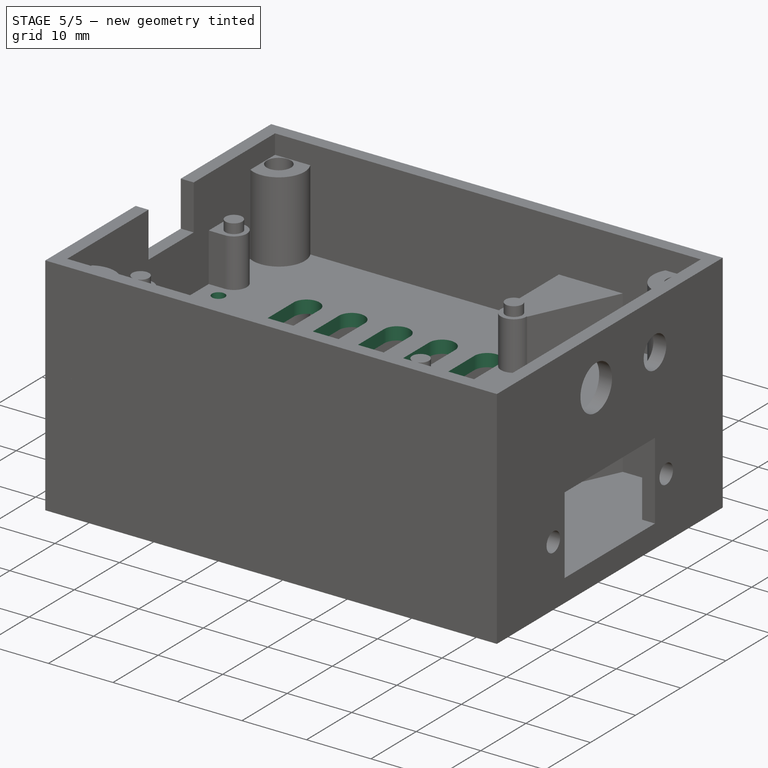
[diagram: stage 5 of 5 — iso view after this stage's code; geometry added in this stage tinted green]
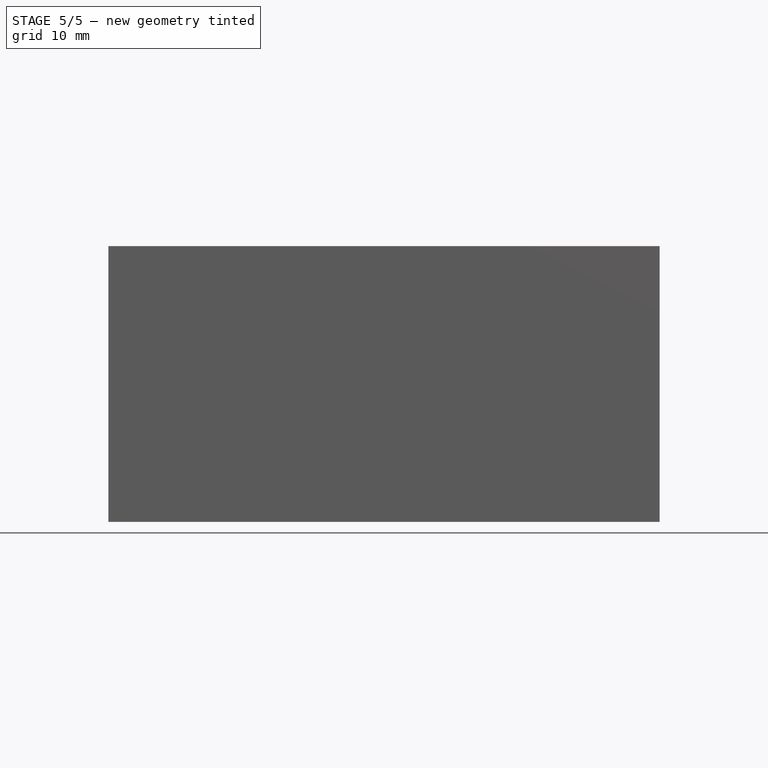
[diagram: stage 5 of 5 — front view after this stage's code; geometry added in this stage tinted green]
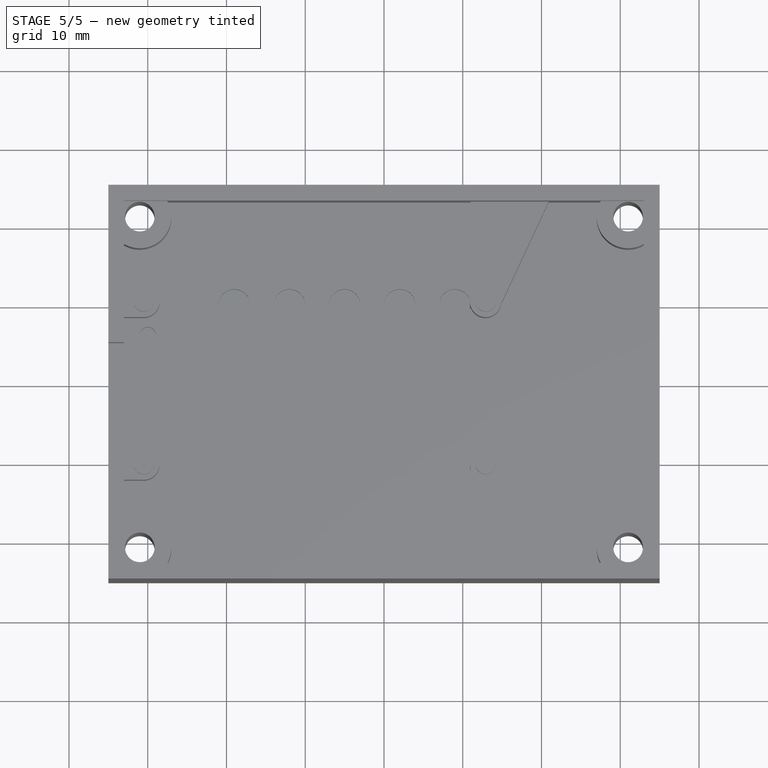
[diagram: stage 5 of 5 — top view after this stage's code; geometry added in this stage tinted green]
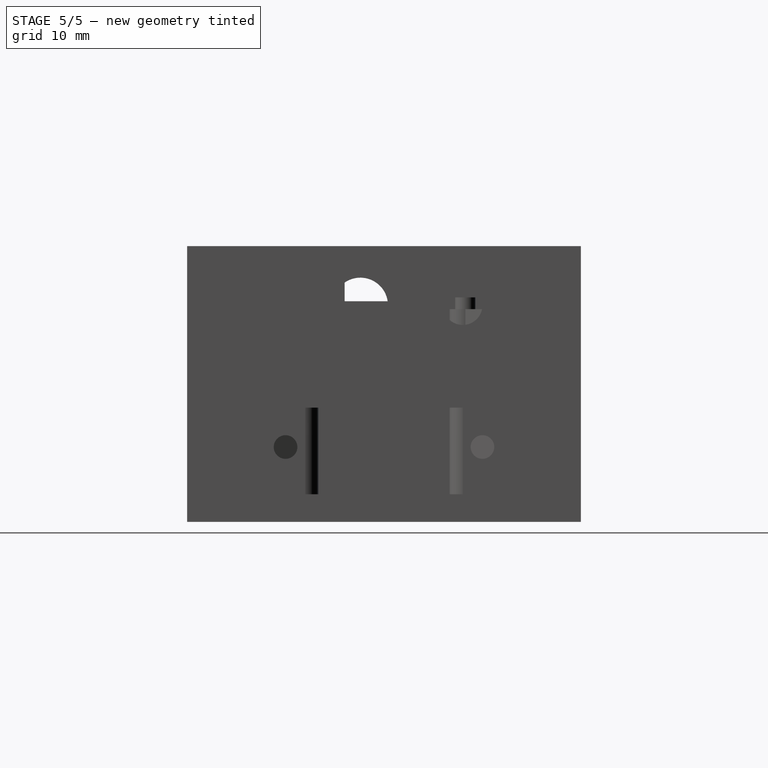
[diagram: stage 5 of 5 — right view after this stage's code; geometry added in this stage tinted green]
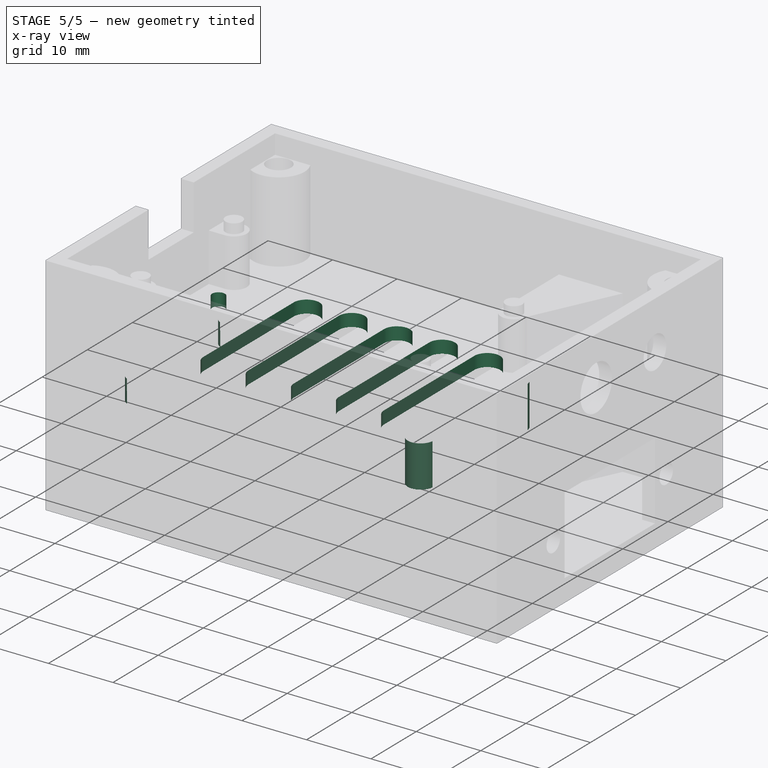
[diagram: stage 5 of 5 — x-ray composite at the iso view; earlier geometry ghosted, this stage's added geometry solid]
FEATURE [Sketcher::SketchObject] Sketch009  label="Sketch012"
  MapMode = 5
  Placement = pos=(0,0,0) rot=(1,0,0;3.14159rad)
  Support = -> [Pocket004]
  sketch-geometry (6):
    g0: LineSegment [constr] StartX=-30.5 StartY=10.325 StartZ=0 EndX=12.9 EndY=10.325 EndZ=0
    g1: LineSegment [constr] StartX=-30.5 StartY=-10.325 StartZ=0 EndX=12.9 EndY=-10.325 EndZ=0
    g2: Circle CenterX=-30.5 CenterY=10.325 CenterZ=0 NormalX=0 NormalY=0 NormalZ=1 AngleXU=0 Radius=2
    g3: Circle CenterX=-30.5 CenterY=-10.325 CenterZ=0 NormalX=0 NormalY=0 NormalZ=1 AngleXU=0 Radius=2
    g4: Circle CenterX=12.9 CenterY=10.325 CenterZ=0 NormalX=0 NormalY=0 NormalZ=1 AngleXU=0 Radius=2
    g5: Circle CenterX=12.9 CenterY=-10.325 CenterZ=0 NormalX=0 NormalY=0 NormalZ=1 AngleXU=0 Radius=2
  constraints (16):
    c: Equal(g0,g1)
    c: DistanceY(g-1,g0) = 10.325
    c: DistanceY(g1,g-1) = 10.325
    c: DistanceX(g0,g0) = 43.4
    c: Coincident(g2,g0)
    c: Coincident(g3,g1)
    c: Radius(g2) = 2
    c: Equal(g2,g3)
    c: DistanceX(g2,g-1) = 30.5
    c: DistanceX(g3,g-1) = 30.5
    c: Coincident(g4,g0)
    c: Coincident(g5,g1)
    c: Radius(g4) = 2
    c: Radius(g5) = 2
    c: DistanceY(g-1,g4) = 10.325
    c: DistanceY(g5,g-1) = 10.325
FEATURE [Sketcher::SketchObject] Sketch012  label="Sketch014"
  MapMode = 5
  Placement = pos=(0,0,0) rot=(1,0,0;3.14159rad)
  sketch-geometry (20):
    g0: ArcOfCircle CenterX=-5 CenterY=10 CenterZ=0 NormalX=0 NormalY=0 NormalZ=1 AngleXU=0 Radius=2 StartAngle=2e-16 EndAngle=3.14159
    g1: ArcOfCircle CenterX=-5 CenterY=-10 CenterZ=0 NormalX=0 NormalY=0 NormalZ=1 AngleXU=0 Radius=2 StartAngle=3.14159 EndAngle=6.28319
    g2: LineSegment StartX=-7 StartY=10 StartZ=0 EndX=-7 EndY=-10 EndZ=0
    g3: LineSegment StartX=-3 StartY=10 StartZ=0 EndX=-3 EndY=-10 EndZ=0
    g4: ArcOfCircle CenterX=-12 CenterY=10 CenterZ=0 NormalX=0 NormalY=0 NormalZ=1 AngleXU=0 Radius=2 StartAngle=3e-16 EndAngle=3.14159
    g5: ArcOfCircle CenterX=-12 CenterY=-10 CenterZ=0 NormalX=0 NormalY=0 NormalZ=1 AngleXU=0 Radius=2 StartAngle=3.14159 EndAngle=6.28319
    g6: LineSegment StartX=-14 StartY=10 StartZ=0 EndX=-14 EndY=-10 EndZ=0
    g7: LineSegment StartX=-10 StartY=10 StartZ=0 EndX=-10 EndY=-10 EndZ=0
    g8: ArcOfCircle CenterX=-19 CenterY=10 CenterZ=0 NormalX=0 NormalY=0 NormalZ=1 AngleXU=0 Radius=2 StartAngle=3e-16 EndAngle=3.14159
    g9: ArcOfCircle CenterX=-19 CenterY=-10 CenterZ=0 NormalX=0 NormalY=0 NormalZ=1 AngleXU=0 Radius=2 StartAngle=3.14159 EndAngle=6.28319
    g10: LineSegment StartX=-21 StartY=10 StartZ=0 EndX=-21 EndY=-10 EndZ=0
    g11: LineSegment StartX=-17 StartY=10 StartZ=0 EndX=-17 EndY=-10 EndZ=0
    g12: ArcOfCircle CenterX=2 CenterY=10 CenterZ=0 NormalX=0 NormalY=0 NormalZ=1 AngleXU=0 Radius=2 StartAngle=3e-16 EndAngle=3.14159
    g13: ArcOfCircle CenterX=2 CenterY=-10 CenterZ=0 NormalX=0 NormalY=0 NormalZ=1 AngleXU=0 Radius=2 StartAngle=3.14159 EndAngle=6.28319
    g14: LineSegment StartX=7.478e-13 StartY=10 StartZ=0 EndX=7.478e-13 EndY=-10 EndZ=0
    g15: LineSegment StartX=4 StartY=10 StartZ=0 EndX=4 EndY=-10 EndZ=0
    g16: ArcOfCircle CenterX=9 CenterY=10 CenterZ=0 NormalX=0 NormalY=0 NormalZ=1 AngleXU=0 Radius=2 StartAngle=5e-16 EndAngle=3.14159
    g17: ArcOfCircle CenterX=9 CenterY=-10 CenterZ=0 NormalX=0 NormalY=0 NormalZ=1 AngleXU=0 Radius=2 StartAngle=3.14159 EndAngle=6.28319
    g18: LineSegment StartX=7 StartY=10 StartZ=0 EndX=7 EndY=-10 EndZ=0
    g19: LineSegment StartX=11 StartY=10 StartZ=0 EndX=11 EndY=-10 EndZ=0
  constraints (45):
    c: Tangent(g0,g3) = 1.5708
    c: Tangent(g0,g2) = -1.5708
    c: Tangent(g2,g1) = -1.5708
    c: Tangent(g3,g1) = 1.5708
    c: Vertical(g2)
    c: Symmetric(g0,g1,g-1)
    c: DistanceX(g1,g1) = 4
    c: DistanceX(g0,g-1) = 5
    c: Tangent(g4,g7) = 1.5708
    c: Tangent(g4,g6) = -1.5708
    c: Tangent(g6,g5) = -1.5708
    c: Tangent(g7,g5) = 1.5708
    c: Equal(g4,g5)
    c: Symmetric(g4,g5,g-1)
    c: Equal(g2,g6)
    c: DistanceX(g5,g5) = 4
    c: DistanceX(g4,g0) = 7
    c: Tangent(g8,g11) = 1.5708
    c: Tangent(g8,g10) = -1.5708
    c: Tangent(g10,g9) = -1.5708
    c: Tangent(g11,g9) = 1.5708
    c: Equal(g8,g9)
    c: Symmetric(g8,g9,g-1)
    c: DistanceX(g9,g9) = 4
    c: DistanceX(g8,g4) = 7
    c: Equal(g2,g10)
    c: Tangent(g12,g15) = 1.5708
    c: Tangent(g12,g14) = -1.5708
    c: Tangent(g14,g13) = -1.5708
    c: Tangent(g15,g13) = 1.5708
    c: Vertical(g14)
    c: Equal(g3,g14)
    c: DistanceY(g13,g12) = 20
    c: Symmetric(g12,g13,g-1)
    c: DistanceX(g13,g13) = 4
    c: DistanceX(g0,g12) = 7
    c: Tangent(g16,g19) = 1.5708
    c: Tangent(g16,g18) = -1.5708
    c: Tangent(g18,g17) = -1.5708
    c: Tangent(g19,g17) = 1.5708
    c: Vertical(g18)
    c: Equal(g14,g18)
    c: Symmetric(g16,g17,g-1)
    c: DistanceX(g17,g17) = 4
    c: DistanceX(g12,g16) = 7
FEATURE [PartDesign::Pocket] Pocket006  label="Lüftungsschlitze"
  BaseFeature = -> Pocket004
  Length = 5
  Length2 = 100
  Profile = -> Sketch012
  Type = 1
FEATURE [PartDesign::Pad] Pad005  label="ESP Gegenstück"
  BaseFeature = -> Pocket006
  Length = 6.5
  Length2 = 100
  Profile = -> Sketch009
  Type = 0
FEATURE [Sketcher::SketchObject] Sketch014  label="Sketch015"
  MapMode = 5
  Placement = pos=(0,0,2) rot=(0,0,1;0rad)
  Support = -> [Pad005]
  expr: Constraints[16] = Parameter.gehaeuse_laenge / 2 - 4
  expr: Constraints[15] = Parameter.gehaeuse_laenge / 2 - 4
  expr: Constraints[13] = Parameter.gehaeuse_laenge / 2 - 4
  expr: Constraints[12] = Parameter.gehaeuse_breite / 2 - 4
  expr: Constraints[11] = Parameter.gehaeuse_breite / 2 - 4
  expr: Constraints[14] = Parameter.gehaeuse_laenge / 2 - 4
  expr: Constraints[9] = Parameter.gehaeuse_breite / 2 - 4
  expr: Constraints[10] = Parameter.gehaeuse_breite / 2 - 4
  expr: Constraints[2] = Parameter.gehaeuse_laenge / 2 - 5
  sketch-geometry (6):
    g0: LineSegment [constr] StartX=-30 StartY=6.2 StartZ=0 EndX=-30 EndY=-6.2 EndZ=0
    g1: Circle CenterX=-30 CenterY=6.2 CenterZ=0 NormalX=0 NormalY=0 NormalZ=1 AngleXU=0 Radius=1
    g2: Circle CenterX=-31 CenterY=21 CenterZ=0 NormalX=0 NormalY=0 NormalZ=1 AngleXU=0 Radius=1.88
    g3: Circle CenterX=31 CenterY=21 CenterZ=0 NormalX=0 NormalY=0 NormalZ=1 AngleXU=0 Radius=1.88
    g4: Circle CenterX=31 CenterY=-21 CenterZ=0 NormalX=0 NormalY=0 NormalZ=1 AngleXU=0 Radius=1.88
    g5: Circle CenterX=-31 CenterY=-21 CenterZ=0 NormalX=0 NormalY=0 NormalZ=1 AngleXU=0 Radius=1.88
  constraints (17):
    c: Symmetric(g0,g0,g-1)
    c: DistanceY(g0,g0) = 12.4
    c: DistanceX(g0,g-1) = 30
    c: Coincident(g1,g0)
    c: Radius(g1) = 1
    c: Radius(g2) = 1.88
    c: Equal(g2,g3)
    c: Equal(g2,g5)
    c: Equal(g2,g4)
    c: DistanceY(g-1,g2) = 21
    c: DistanceY(g5,g-1) = 21
    c: DistanceY(g4,g-1) = 21
    c: DistanceY(g-1,g3) = 21
    c: DistanceX(g2,g-1) = 31
    c: DistanceX(g-1,g3) = 31
    c: DistanceX(g5,g-1) = 31
    c: DistanceX(g-1,g4) = 31
FEATURE [PartDesign::Pocket] Pocket008  label="Reset"
  BaseFeature = -> Pad005
  Length = 5
  Length2 = 100
  Profile = -> Sketch014
  Type = 1
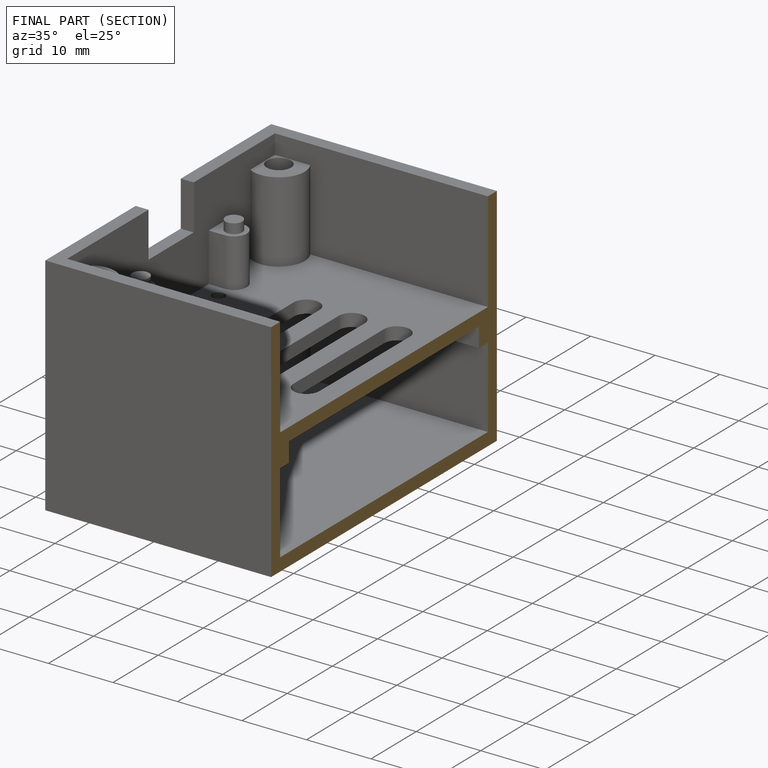
[diagram: finished part — half-section view (interior)]
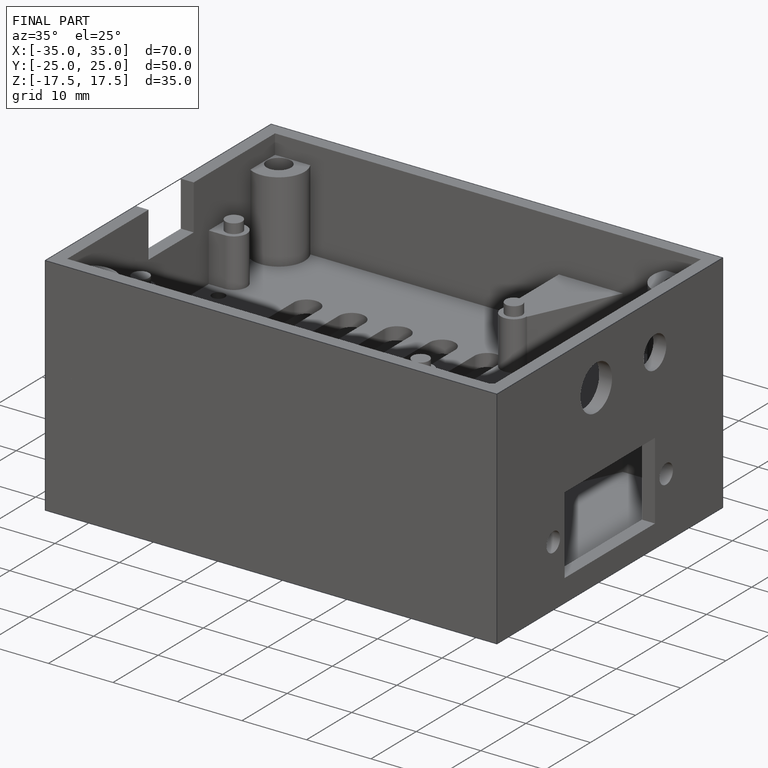
[diagram: finished part — iso view with bounding-box wireframe]
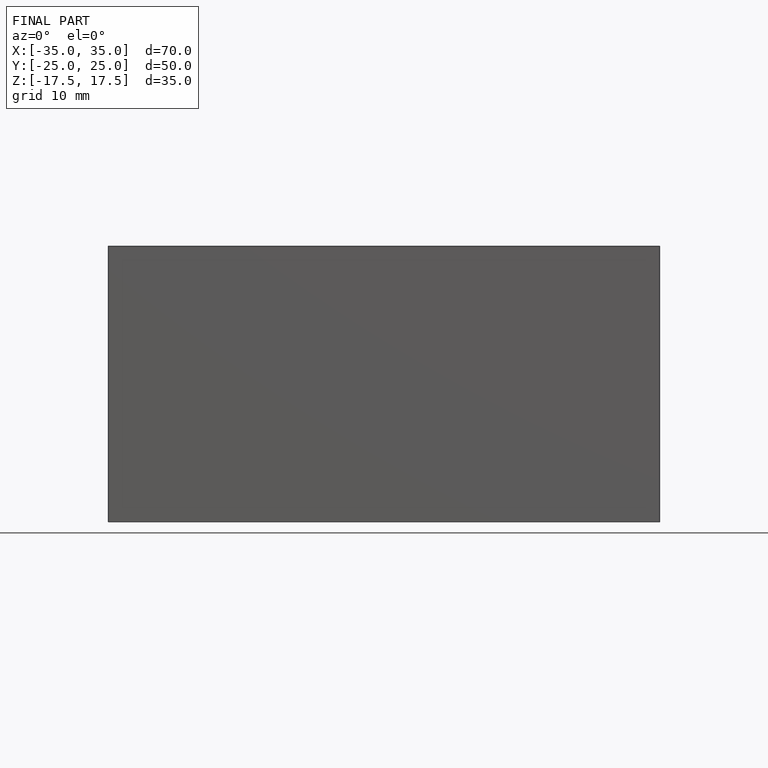
[diagram: finished part — front view with bounding-box wireframe]
